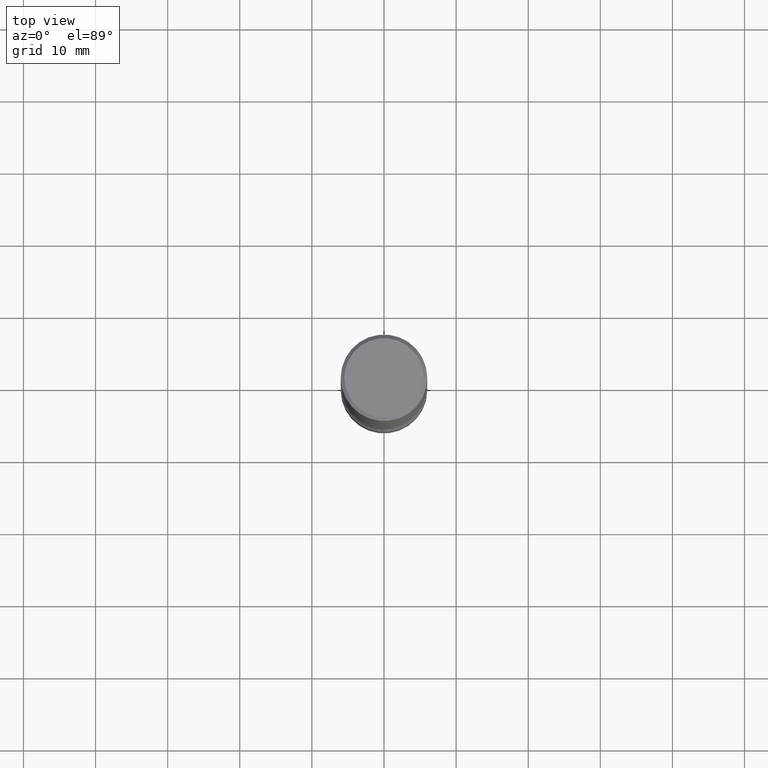
[diagram: clean part render]
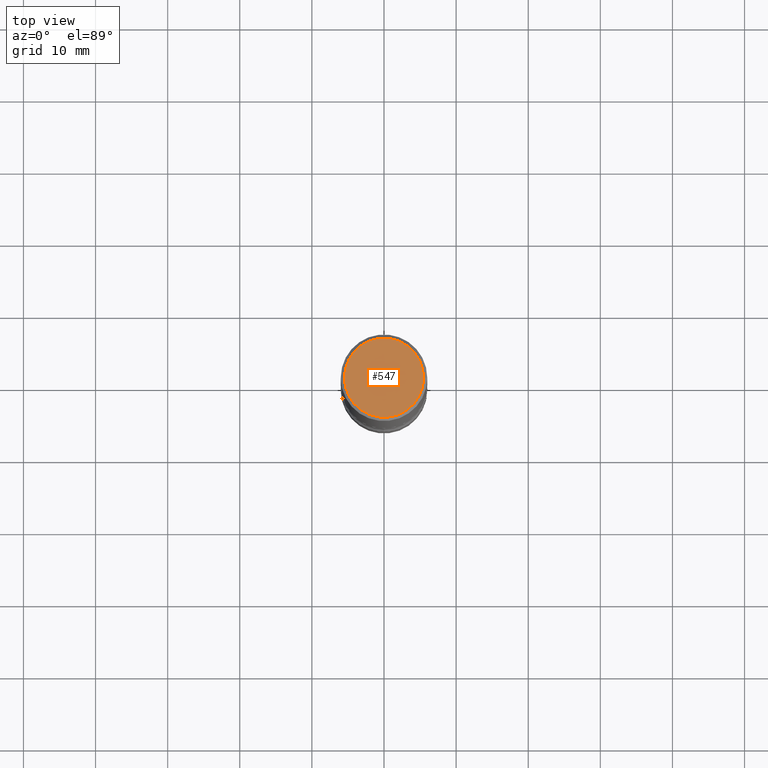
[diagram: same view with one face highlighted and labeled with its STEP entity id]
A machine part, top view. The second image highlights one B-rep face of the part: STEP entity #547.
In plain terms, the highlighted planar face has unit normal (0, -0, -1).
Its self-contained STEP definition (entity closure, byte-faithful):
#4 = EDGE_CURVE ( 'NONE', #67, #448, #377, .T. ) ;
#65 = DIRECTION ( 'NONE',  ( -2.445468806185136597E-29, 3.491481338843145583E-15, 1.000000000000000000 ) ) ;
#67 = VERTEX_POINT ( 'NONE', #550 ) ;
#106 = CARTESIAN_POINT ( 'NONE',  ( -1.043851414335219820E-46, 1.490343170380447200E-32, 4.268512490100411279E-18 ) ) ;
#132 = DIRECTION ( 'NONE',  ( 2.438088387897960049E-29, -3.491481338843145188E-15, -1.000000000000000000 ) ) ;
#145 = FACE_OUTER_BOUND ( 'NONE', #430, .T. ) ;
#161 = EDGE_CURVE ( 'NONE', #448, #67, #442, .T. ) ;
#162 = DIRECTION ( 'NONE',  ( -2.445468806185136597E-29, 3.491481338843145583E-15, 1.000000000000000000 ) ) ;
#173 = PLANE ( 'NONE',  #507 ) ;
#208 = DIRECTION ( 'NONE',  ( 1.000000000000000000, -6.982962677686266711E-15, 4.876217060660158478E-29 ) ) ;
#263 = ORIENTED_EDGE ( 'NONE', *, *, #161, .T. ) ;
#272 = AXIS2_PLACEMENT_3D ( 'NONE', #106, #65, #413 ) ;
#281 = ORIENTED_EDGE ( 'NONE', *, *, #4, .T. ) ;
#351 = DIRECTION ( 'NONE',  ( -1.000000000000000000, 6.982962677686265922E-15, -4.876176775795935793E-29 ) ) ;
#353 = CARTESIAN_POINT ( 'NONE',  ( 0.2161999999999998645, -1.586759460484351199E-15, 4.268512490111238857E-18 ) ) ;
#373 = CARTESIAN_POINT ( 'NONE',  ( -1.043851414335219820E-46, 1.490343170380447200E-32, 4.268512490100411279E-18 ) ) ;
#377 = CIRCLE ( 'NONE', #272, 0.2161999999999998645 ) ;
#413 = DIRECTION ( 'NONE',  ( 1.000000000000000000, -6.982962677686266711E-15, 4.876217060660158478E-29 ) ) ;
#417 = AXIS2_PLACEMENT_3D ( 'NONE', #373, #162, #208 ) ;
#430 = EDGE_LOOP ( 'NONE', ( #281, #263 ) ) ;
#442 = CIRCLE ( 'NONE', #417, 0.2161999999999998645 ) ;
#448 = VERTEX_POINT ( 'NONE', #353 ) ;
#476 = CARTESIAN_POINT ( 'NONE',  ( 1.509716530915769732E-15, 0.2161999999999998645, -7.527240092128375121E-16 ) ) ;
#507 = AXIS2_PLACEMENT_3D ( 'NONE', #476, #132, #351 ) ;
#547 = ADVANCED_FACE ( 'NONE', ( #145 ), #173, .F. ) ;
#550 = CARTESIAN_POINT ( 'NONE',  ( -0.2161999999999998645, 1.544631344304201183E-15, 4.268512490089730842E-18 ) ) ;